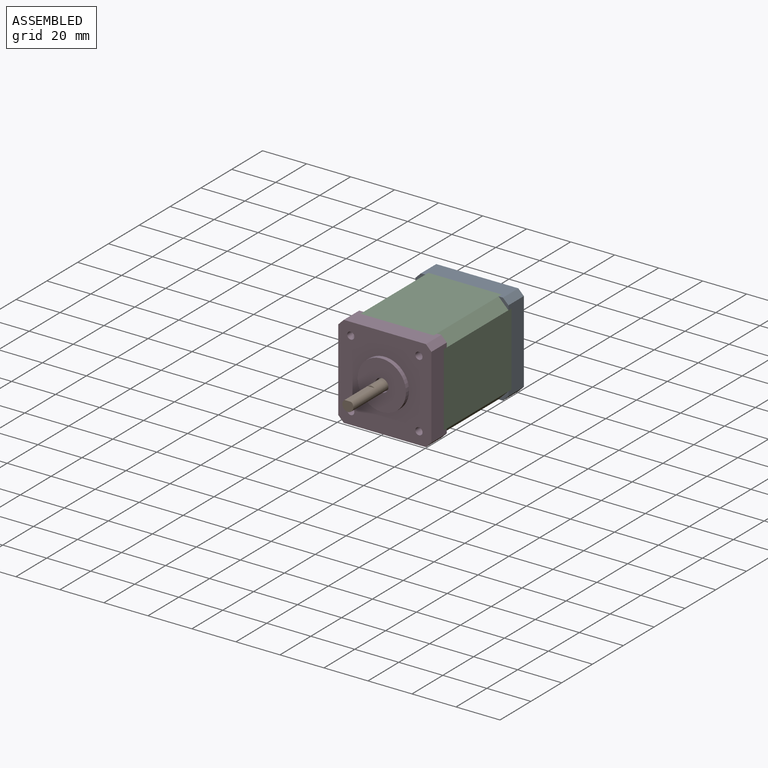
[diagram: assembled view]
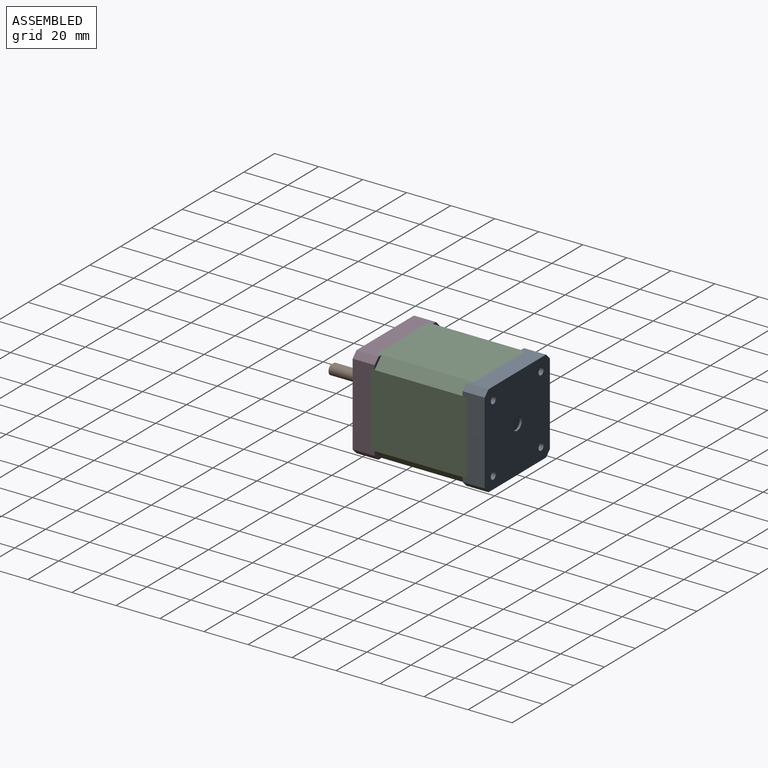
[diagram: assembled view, second angle]
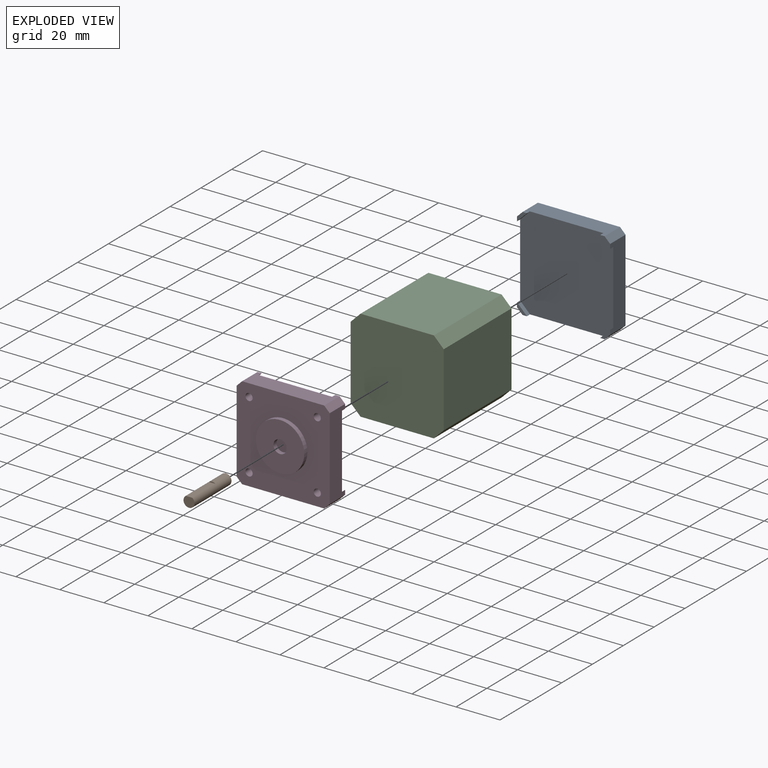
[diagram: exploded view]
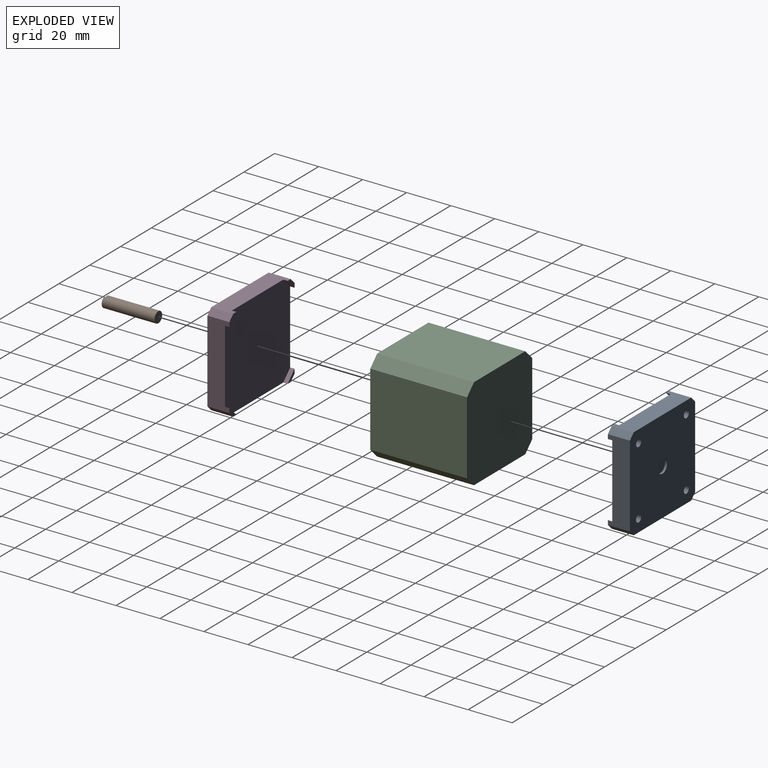
[diagram: exploded view, second angle]
ASSEMBLY  parts=4 mates=3
PART A: 28 faces, bbox 42.3x42.3x10 mm
  f0: plane 42.3x42.3mm, normal (0,0,-1), area 1748.8mm2, adj f1,f3,f5,f7,f12,f14,f16,f18
  f1: plane 37.3x10mm, normal (0,1,0), area 306.4mm2, adj f0,f2,f8,f9,f14,f15,f18,f19
  f2: plane 10x2.5mm, normal (-0.71,0.71,0), area 35.4mm2, adj f1,f3,f9,f19
  f3: plane 37.3x10mm, normal (-1,0,0), area 306.4mm2, adj f0,f2,f4,f9,f16,f17,f18,f19
  f4: plane 10x2.5mm, normal (-0.71,-0.71,0), area 35.4mm2, adj f3,f5,f9,f17
  f5: plane 37.3x10mm, normal (0,-1,0), area 306.4mm2, adj f0,f4,f6,f9,f12,f13,f16,f17
  f6: plane 10x2.5mm, normal (0.71,-0.71,0), area 35.4mm2, adj f5,f7,f9,f13
  f7: plane 37.3x10mm, normal (1,0,0), area 306.4mm2, adj f0,f6,f8,f9,f12,f13,f14,f15
  f8: plane 10x2.5mm, normal (0.71,0.71,0), area 35.4mm2, adj f1,f7,f9,f15
  f9: plane 42.3x42.3mm, normal (0,0,1), area 1715mm2, adj f1,f2,f3,f4,f5,f6,f7,f8
  f10: cylinder r=3mm len=6mm, axis (0,0,1), area 18.8mm2, adj f9,f11
  f11: plane 6x6mm, normal (0,0,1), area 28.3mm2, adj f10
  f12: plane 4.5x4.5mm, normal (-0.71,0.71,0), area 12.7mm2, adj f0,f5,f7,f13
  f13: plane 4.5x4.5mm, normal (0,0,-1), area 7mm2, adj f5,f6,f7,f12
  f14: plane 4.5x4.5mm, normal (-0.71,-0.71,0), area 12.7mm2, adj f0,f1,f7,f15
  f15: plane 4.5x4.5mm, normal (0,0,-1), area 7mm2, adj f1,f7,f8,f14
  f16: plane 4.5x4.5mm, normal (0.71,0.71,0), area 12.7mm2, adj f0,f3,f5,f17
  f17: plane 4.5x4.5mm, normal (0,0,-1), area 7mm2, adj f3,f4,f5,f16
  f18: plane 4.5x4.5mm, normal (0.71,-0.71,0), area 12.7mm2, adj f0,f1,f3,f19
  f19: plane 4.5x4.5mm, normal (0,0,-1), area 7mm2, adj f1,f2,f3,f18
  f20: cylinder r=1.63mm len=4mm, axis (0,0,1), area 41mm2, adj f9,f21
  f21: cone r=0mm half-angle=59deg, axis (0,0,1), area 9.8mm2, adj f20
  f22: cylinder r=1.63mm len=4mm, axis (0,0,1), area 41mm2, adj f9,f23
  f23: cone r=0mm half-angle=59deg, axis (0,0,1), area 9.8mm2, adj f22
  f24: cylinder r=1.63mm len=4mm, axis (0,0,1), area 41mm2, adj f9,f25
  f25: cone r=0mm half-angle=59deg, axis (0,0,1), area 9.8mm2, adj f24
  f26: cylinder r=1.63mm len=4mm, axis (0,0,1), area 41mm2, adj f9,f27
  f27: cone r=0mm half-angle=59deg, axis (0,0,1), area 9.8mm2, adj f26
PART B: 5 faces, bbox 5x24x5 mm
  f0: cylinder r=2.5mm len=24mm, axis (0,1,0), area 328.7mm2, adj f1,f2,f3,f4
  f1: plane 5x4.5mm, normal (0,-1,0), area 18.6mm2, adj f0,f3
  f2: plane 5x5mm, normal (0,1,0), area 19.6mm2, adj f0
  f3: plane 15x3mm, normal (0,0,1), area 45mm2, adj f0,f1,f4
  f4: plane 3x0.5mm, normal (0,-1,0), area 1mm2, adj f0,f3
PART C: 10 faces, bbox 42.3x42.3x44 mm
  f0: plane 44x33.3mm, normal (0,1,0), area 1465.2mm2, adj f1,f7,f8,f9
  f1: plane 44x4.5mm, normal (-0.71,0.71,0), area 280mm2, adj f0,f2,f8,f9
  f2: plane 44x33.3mm, normal (-1,0,0), area 1465.2mm2, adj f1,f3,f8,f9
  f3: plane 44x4.5mm, normal (-0.71,-0.71,0), area 280mm2, adj f2,f4,f8,f9
  f4: plane 44x33.3mm, normal (0,-1,0), area 1465.2mm2, adj f3,f5,f8,f9
  f5: plane 44x4.5mm, normal (0.71,-0.71,0), area 280mm2, adj f4,f6,f8,f9
  f6: plane 44x33.3mm, normal (1,0,0), area 1465.2mm2, adj f5,f7,f8,f9
  f7: plane 44x4.5mm, normal (0.71,0.71,0), area 280mm2, adj f0,f6,f8,f9
  f8: plane 42.3x42.3mm, normal (0,0,1), area 1748.8mm2, adj f0,f1,f2,f3,f4,f5,f6,f7
  f9: plane 42.3x42.3mm, normal (0,0,-1), area 1748.8mm2, adj f0,f1,f2,f3,f4,f5,f6,f7
PART D: 30 faces, bbox 42.3x42.3x12 mm
  f0: plane 42.3x42.3mm, normal (0,0,-1), area 1748.8mm2, adj f1,f3,f5,f7,f14,f16,f18,f20
  f1: plane 37.3x10mm, normal (0,-1,0), area 306.4mm2, adj f0,f2,f8,f9,f16,f17,f20,f21
  f2: plane 10x2.5mm, normal (0.71,-0.71,0), area 35.4mm2, adj f1,f3,f9,f17
  f3: plane 37.3x10mm, normal (1,0,0), area 306.4mm2, adj f0,f2,f4,f9,f14,f15,f16,f17
  f4: plane 10x2.5mm, normal (0.71,0.71,0), area 35.4mm2, adj f3,f5,f9,f15
  f5: plane 37.3x10mm, normal (0,1,0), area 306.4mm2, adj f0,f4,f6,f9,f14,f15,f18,f19
  f6: plane 10x2.5mm, normal (-0.71,0.71,0), area 35.4mm2, adj f5,f7,f9,f19
  f7: plane 37.3x10mm, normal (-1,0,0), area 306.4mm2, adj f0,f6,f8,f9,f18,f19,f20,f21
  f8: plane 10x2.5mm, normal (-0.71,-0.71,0), area 35.4mm2, adj f1,f7,f9,f21
  f9: plane 42.3x42.3mm, normal (0,0,1), area 1363.2mm2, adj f1,f2,f3,f4,f5,f6,f7,f8
  f10: cylinder r=3mm len=6mm, axis (0,0,-1), area 37.7mm2, adj f12,f13
  f11: cylinder r=11mm len=22mm, axis (0,0,-1), area 138.2mm2, adj f9,f12
  f12: plane 22x22mm, normal (0,0,1), area 351.9mm2, adj f10,f11
  f13: plane 6x6mm, normal (0,0,1), area 28.3mm2, adj f10
  f14: plane 4.5x4.5mm, normal (-0.71,-0.71,0), area 12.7mm2, adj f0,f3,f5,f15
  f15: plane 4.5x4.5mm, normal (0,0,-1), area 7mm2, adj f3,f4,f5,f14
  f16: plane 4.5x4.5mm, normal (-0.71,0.71,0), area 12.7mm2, adj f0,f1,f3,f17
  f17: plane 4.5x4.5mm, normal (0,0,-1), area 7mm2, adj f1,f2,f3,f16
  f18: plane 4.5x4.5mm, normal (0.71,-0.71,0), area 12.7mm2, adj f0,f5,f7,f19
  f19: plane 4.5x4.5mm, normal (0,0,-1), area 7mm2, adj f5,f6,f7,f18
  f20: plane 4.5x4.5mm, normal (0.71,0.71,0), area 12.7mm2, adj f0,f1,f7,f21
  f21: plane 4.5x4.5mm, normal (0,0,-1), area 7mm2, adj f1,f7,f8,f20
  f22: cylinder r=1.63mm len=4mm, axis (0,0,1), area 41mm2, adj f9,f23
  f23: cone r=0mm half-angle=59deg, axis (0,0,1), area 9.8mm2, adj f22
  f24: cylinder r=1.63mm len=4mm, axis (0,0,1), area 41mm2, adj f9,f25
  f25: cone r=0mm half-angle=59deg, axis (0,0,1), area 9.8mm2, adj f24
  f26: cylinder r=1.63mm len=4mm, axis (0,0,1), area 41mm2, adj f9,f27
  f27: cone r=0mm half-angle=59deg, axis (0,0,1), area 9.8mm2, adj f26
  f28: cylinder r=1.63mm len=4mm, axis (0,0,1), area 41mm2, adj f9,f29
  f29: cone r=0mm half-angle=59deg, axis (0,0,1), area 9.8mm2, adj f28
PLACE A rot(axis=(-1,0,0),90deg) t=(-17.17,58.29,-1.63)mm
PLACE B t=(-58.72,7.29,-15.06)mm
PLACE C rot(axis=(1,0,0),90deg) t=(-377.17,50.29,-1.63)mm
PLACE D rot(axis=(0,0.71,-0.71),180deg) t=(-77.17,-1.71,-1.63)mm
MATE fastened A.f10 <-> C.f9  axis (0,-1,0) through (-77.17,50.29,-1.63)mm
MATE fastened D.f10 <-> C.f8  axis (0,1,0) through (-77.17,6.29,-1.63)mm
MATE fastened B.f0 <-> D.f10  axis (0,1,0) through (-77.17,-1.71,-1.63)mm
